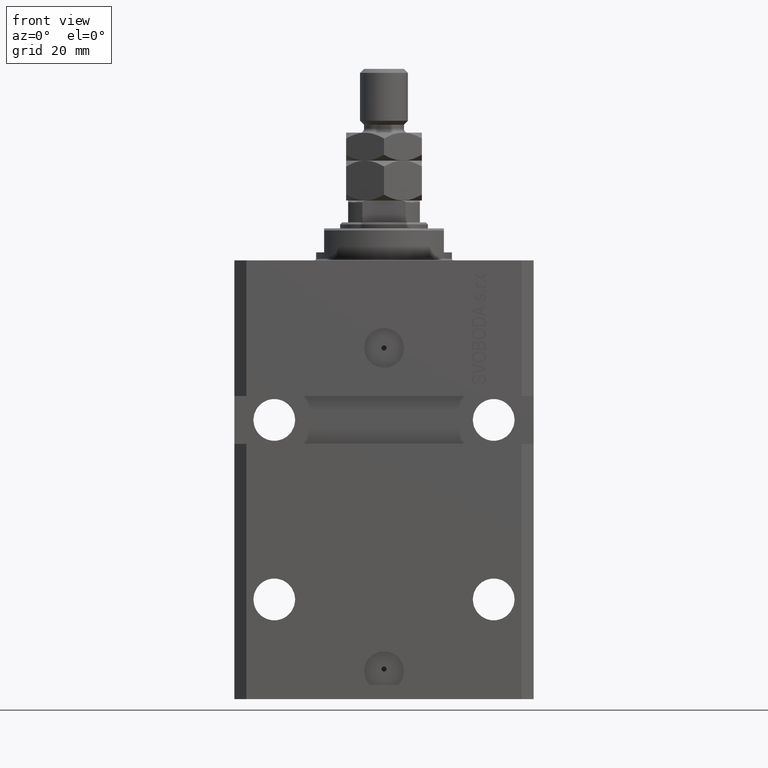
[diagram: clean part render]
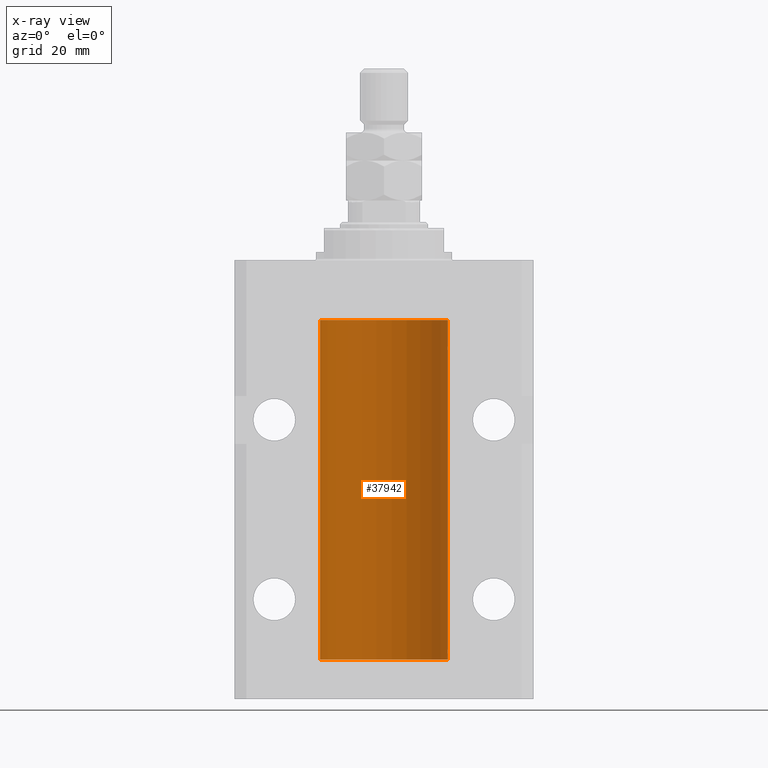
[diagram: x-ray — body ghosted, one internal face saturated and labeled with its STEP entity id]
A machine part, front view, then the same camera in x-ray: the body is ghosted and one INTERNAL B-rep face — a face not visible from any outside direction — is saturated and labeled: STEP entity #37942.
In plain terms, the highlighted cylindrical surface (partial cylindrical patch) has radius 16 mm, axis along (0, 0, 1).
Its self-contained STEP definition (entity closure, byte-faithful):
#51 = DIRECTION ( 'NONE',  ( -0.000000000000000000, -0.000000000000000000, 1.000000000000000000 ) ) ;
#489 = CARTESIAN_POINT ( 'NONE',  ( 16.00000000000000000, -1.835653844722709729E-15, -98.62500000000000000 ) ) ;
#690 = CARTESIAN_POINT ( 'NONE',  ( 15.98844460043492077, 0.6087869699336542206, -21.83657454967558564 ) ) ;
#926 = CARTESIAN_POINT ( 'NONE',  ( 15.99228275317787507, 0.5002975944204003378, -21.61642014570181303 ) ) ;
#1552 = DIRECTION ( 'NONE',  ( -0.000000000000000000, -0.000000000000000000, 1.000000000000000000 ) ) ;
#1694 = B_SPLINE_CURVE_WITH_KNOTS ( 'NONE', 3,
 ( #26391, #29898, #15883, #33633, #15416, #30139, #40656, #19840 ),
 .UNSPECIFIED., .F., .F.,
 ( 4, 2, 2, 4 ),
 ( 0.0009773326288700682433, 0.001221554802188685399, 0.001465776975507302772, 0.001954221322144537518 ),
 .UNSPECIFIED. ) ;
#1860 = VERTEX_POINT ( 'NONE', #19919 ) ;
#2806 = ORIENTED_EDGE ( 'NONE', *, *, #27897, .F. ) ;
#2835 = CARTESIAN_POINT ( 'NONE',  ( 0.000000000000000000, 0.000000000000000000, -100.0999999999999943 ) ) ;
#4076 = EDGE_CURVE ( 'NONE', #35681, #9037, #10328, .T. ) ;
#4332 = VERTEX_POINT ( 'NONE', #17916 ) ;
#5016 = VERTEX_POINT ( 'NONE', #23088 ) ;
#5038 = VECTOR ( 'NONE', #13928, 1000.000000000000000 ) ;
#5356 = ORIENTED_EDGE ( 'NONE', *, *, #7928, .T. ) ;
#5838 = DIRECTION ( 'NONE',  ( 1.000000000000000000, 0.000000000000000000, 0.000000000000000000 ) ) ;
#7324 = CARTESIAN_POINT ( 'NONE',  ( 16.00000000000000000, -7.378931128587136680E-16, -22.62500000000000000 ) ) ;
#7610 = CARTESIAN_POINT ( 'NONE',  ( -16.00000000000000000, 1.959434878635765131E-15, -100.0999999999999943 ) ) ;
#7928 = EDGE_CURVE ( 'NONE', #9037, #11939, #24367, .T. ) ;
#8016 = CARTESIAN_POINT ( 'NONE',  ( 16.00000000000000000, 0.000000000000000000, -15.00000000000000000 ) ) ;
#8124 = CYLINDRICAL_SURFACE ( 'NONE', #41912, 16.00000000000000000 ) ;
#8211 = ORIENTED_EDGE ( 'NONE', *, *, #4076, .T. ) ;
#8327 = CARTESIAN_POINT ( 'NONE',  ( -16.00000000000000000, 1.959434878635765131E-15, -100.0999999999999943 ) ) ;
#9037 = VERTEX_POINT ( 'NONE', #23539 ) ;
#9052 = CARTESIAN_POINT ( 'NONE',  ( 16.00000000000000000, -7.378931128587136680E-16, -22.62500000000000000 ) ) ;
#9068 = EDGE_CURVE ( 'NONE', #1860, #36696, #44356, .T. ) ;
#9344 = CARTESIAN_POINT ( 'NONE',  ( 0.000000000000000000, 0.000000000000000000, -15.00000000000000000 ) ) ;
#10328 = B_SPLINE_CURVE_WITH_KNOTS ( 'NONE', 3,
 ( #28964, #18889, #690, #43687, #926, #11874, #12114, #32472 ),
 .UNSPECIFIED., .F., .F.,
 ( 4, 2, 2, 4 ),
 ( 0.0009773326288699671956, 0.001221554802188560499, 0.001465776975507153803, 0.001954221322144333254 ),
 .UNSPECIFIED. ) ;
#10422 = LINE ( 'NONE', #24455, #5038 ) ;
#11874 = CARTESIAN_POINT ( 'NONE',  ( 15.99711856062700122, 0.3252985083513916242, -21.44140297987714661 ) ) ;
#11939 = VERTEX_POINT ( 'NONE', #8016 ) ;
#12114 = CARTESIAN_POINT ( 'NONE',  ( 15.99999999999999289, 0.1631343969470014366, -21.37500000000020606 ) ) ;
#12316 = CARTESIAN_POINT ( 'NONE',  ( 16.00000000000000000, 0.000000000000000000, -100.0999999999999943 ) ) ;
#12691 = ORIENTED_EDGE ( 'NONE', *, *, #33436, .T. ) ;
#13597 = CARTESIAN_POINT ( 'NONE',  ( 16.00000000000000000, -1.835653844722709729E-15, -98.62500000000000000 ) ) ;
#13928 = DIRECTION ( 'NONE',  ( -0.000000000000000000, -0.000000000000000000, 1.000000000000000000 ) ) ;
#14277 = CARTESIAN_POINT ( 'NONE',  ( 16.00000000000001066, 0.08261762387943044628, -98.62500000000001421 ) ) ;
#14617 = B_SPLINE_CURVE_WITH_KNOTS ( 'NONE', 3,
 ( #489, #14277, #42570, #43250, #21293, #32267, #18450, #39060 ),
 .UNSPECIFIED., .F., .F.,
 ( 4, 2, 2, 4 ),
 ( 1.783888443149829469E-18, 0.0002443331572175257886, 0.0004886663144350497342, 0.0009773326288700682433 ),
 .UNSPECIFIED. ) ;
#14699 = CARTESIAN_POINT ( 'NONE',  ( 15.98778830858070954, 0.6250000000080517815, -97.99999999999916156 ) ) ;
#15285 = ORIENTED_EDGE ( 'NONE', *, *, #35964, .T. ) ;
#15416 = CARTESIAN_POINT ( 'NONE',  ( 15.99228275317786441, 0.5002975944204781644, -97.61642014570176684 ) ) ;
#15637 = ORIENTED_EDGE ( 'NONE', *, *, #17285, .F. ) ;
#15826 = DIRECTION ( 'NONE',  ( 1.000000000000000000, 0.000000000000000000, 0.000000000000000000 ) ) ;
#15837 = CARTESIAN_POINT ( 'NONE',  ( 15.99707608081895494, 0.3151028052309814975, -22.54594170697728117 ) ) ;
#15883 = CARTESIAN_POINT ( 'NONE',  ( 15.98844460043491367, 0.6087869699337551399, -97.83657454967556077 ) ) ;
#17285 = EDGE_CURVE ( 'NONE', #1860, #37034, #22510, .T. ) ;
#17502 = ORIENTED_EDGE ( 'NONE', *, *, #34991, .T. ) ;
#17916 = CARTESIAN_POINT ( 'NONE',  ( 16.00000000000013145, 3.665532692826917502E-13, -97.37499999999657518 ) ) ;
#18402 = CARTESIAN_POINT ( 'NONE',  ( 0.000000000000000000, 0.000000000000000000, -100.0999999999999943 ) ) ;
#18450 = CARTESIAN_POINT ( 'NONE',  ( 15.98778830858101685, 0.6250000000002223777, -98.16311639173024162 ) ) ;
#18627 = FACE_OUTER_BOUND ( 'NONE', #39721, .T. ) ;
#18889 = CARTESIAN_POINT ( 'NONE',  ( 15.98778830858104172, 0.6249999999996183053, -21.91847885046212951 ) ) ;
#19792 = CARTESIAN_POINT ( 'NONE',  ( 16.00000000000000000, 0.08261762387942135633, -22.62499999999996803 ) ) ;
#19840 = CARTESIAN_POINT ( 'NONE',  ( 16.00000000000013145, 3.665532692826917502E-13, -97.37499999999657518 ) ) ;
#19868 = DIRECTION ( 'NONE',  ( 0.000000000000000000, 0.000000000000000000, 1.000000000000000000 ) ) ;
#19919 = CARTESIAN_POINT ( 'NONE',  ( 16.00000000000000000, 0.000000000000000000, -100.0999999999999943 ) ) ;
#20293 = AXIS2_PLACEMENT_3D ( 'NONE', #2835, #19868, #44665 ) ;
#20846 = CARTESIAN_POINT ( 'NONE',  ( 16.00000000000000000, 0.000000000000000000, -100.0999999999999943 ) ) ;
#21293 = CARTESIAN_POINT ( 'NONE',  ( 15.99548458234361448, 0.3844468804816183471, -98.49947786696355934 ) ) ;
#22322 = VECTOR ( 'NONE', #51, 1000.000000000000000 ) ;
#22510 = CIRCLE ( 'NONE', #20293, 16.00000000000000000 ) ;
#22599 = DIRECTION ( 'NONE',  ( -0.000000000000000000, -0.000000000000000000, 1.000000000000000000 ) ) ;
#23088 = CARTESIAN_POINT ( 'NONE',  ( -16.00000000000000000, 1.959434878635765131E-15, -15.00000000000000000 ) ) ;
#23539 = CARTESIAN_POINT ( 'NONE',  ( 16.00000000000013145, 3.665532680419208314E-13, -21.37499999999658229 ) ) ;
#23593 = DIRECTION ( 'NONE',  ( 0.000000000000000000, 0.000000000000000000, 1.000000000000000000 ) ) ;
#24367 = LINE ( 'NONE', #20846, #22322 ) ;
#24455 = CARTESIAN_POINT ( 'NONE',  ( 16.00000000000000000, 0.000000000000000000, -100.0999999999999943 ) ) ;
#24986 = ORIENTED_EDGE ( 'NONE', *, *, #38734, .T. ) ;
#26077 = LINE ( 'NONE', #8327, #38513 ) ;
#26391 = CARTESIAN_POINT ( 'NONE',  ( 15.98778830858070954, 0.6250000000080517815, -97.99999999999916156 ) ) ;
#26566 = DIRECTION ( 'NONE',  ( -0.000000000000000000, -0.000000000000000000, 1.000000000000000000 ) ) ;
#26842 = ORIENTED_EDGE ( 'NONE', *, *, #9068, .T. ) ;
#27897 = EDGE_CURVE ( 'NONE', #37034, #5016, #26077, .T. ) ;
#28964 = CARTESIAN_POINT ( 'NONE',  ( 15.98778830858070954, 0.6250000000079481977, -21.99999999999914735 ) ) ;
#29898 = CARTESIAN_POINT ( 'NONE',  ( 15.98778830858103817, 0.6249999999997223332, -97.91847885046210820 ) ) ;
#30139 = CARTESIAN_POINT ( 'NONE',  ( 15.99711856062700477, 0.3252985083514284281, -97.44140297987712529 ) ) ;
#30552 = CARTESIAN_POINT ( 'NONE',  ( 15.99548458234361803, 0.3844468804815583396, -22.49947786696350960 ) ) ;
#31085 = VERTEX_POINT ( 'NONE', #14699 ) ;
#31160 = ORIENTED_EDGE ( 'NONE', *, *, #43509, .T. ) ;
#31318 = VECTOR ( 'NONE', #26566, 1000.000000000000000 ) ;
#32267 = CARTESIAN_POINT ( 'NONE',  ( 15.99070366873610283, 0.5574063959867601170, -98.32639436837558833 ) ) ;
#32472 = CARTESIAN_POINT ( 'NONE',  ( 16.00000000000013145, 3.665532680419208314E-13, -21.37499999999658229 ) ) ;
#33436 = EDGE_CURVE ( 'NONE', #4332, #35627, #10422, .T. ) ;
#33633 = CARTESIAN_POINT ( 'NONE',  ( 15.99070695999103542, 0.5461439696927204990, -97.68526802364048933 ) ) ;
#34057 = CARTESIAN_POINT ( 'NONE',  ( 15.99934183755191341, 0.1636877470526788836, -22.60872690654067796 ) ) ;
#34991 = EDGE_CURVE ( 'NONE', #36696, #31085, #14617, .T. ) ;
#35627 = VERTEX_POINT ( 'NONE', #7324 ) ;
#35681 = VERTEX_POINT ( 'NONE', #36075 ) ;
#35964 = EDGE_CURVE ( 'NONE', #31085, #4332, #1694, .T. ) ;
#36075 = CARTESIAN_POINT ( 'NONE',  ( 15.98778830858070954, 0.6250000000079481977, -21.99999999999914735 ) ) ;
#36187 = B_SPLINE_CURVE_WITH_KNOTS ( 'NONE', 3,
 ( #9052, #19792, #34057, #15837, #30552, #45051, #45516, #38729 ),
 .UNSPECIFIED., .F., .F.,
 ( 4, 2, 2, 4 ),
 ( 1.864948331951035013E-18, 0.0002443331572174913110, 0.0004886663144349807789, 0.0009773326288699671956 ),
 .UNSPECIFIED. ) ;
#36696 = VERTEX_POINT ( 'NONE', #13597 ) ;
#37034 = VERTEX_POINT ( 'NONE', #7610 ) ;
#37310 = CIRCLE ( 'NONE', #44802, 16.00000000000000000 ) ;
#37942 = ADVANCED_FACE ( 'NONE', ( #18627 ), #8124, .F. ) ;
#38513 = VECTOR ( 'NONE', #1552, 1000.000000000000000 ) ;
#38729 = CARTESIAN_POINT ( 'NONE',  ( 15.98778830858070954, 0.6250000000079481977, -21.99999999999914735 ) ) ;
#38734 = EDGE_CURVE ( 'NONE', #11939, #5016, #37310, .T. ) ;
#39060 = CARTESIAN_POINT ( 'NONE',  ( 15.98778830858070954, 0.6250000000080517815, -97.99999999999916156 ) ) ;
#39721 = EDGE_LOOP ( 'NONE', ( #2806, #15637, #26842, #17502, #15285, #12691, #31160, #8211, #5356, #24986 ) ) ;
#40656 = CARTESIAN_POINT ( 'NONE',  ( 15.99999999999999645, 0.1631343969470158417, -97.37500000000021316 ) ) ;
#41912 = AXIS2_PLACEMENT_3D ( 'NONE', #18402, #22599, #15826 ) ;
#42570 = CARTESIAN_POINT ( 'NONE',  ( 15.99934183755190986, 0.1636877470527013101, -98.60872690654072414 ) ) ;
#43250 = CARTESIAN_POINT ( 'NONE',  ( 15.99707608081895138, 0.3151028052310259620, -98.54594170697734512 ) ) ;
#43509 = EDGE_CURVE ( 'NONE', #35627, #35681, #36187, .T. ) ;
#43687 = CARTESIAN_POINT ( 'NONE',  ( 15.99070695999104252, 0.5461439696926362330, -21.68526802364053552 ) ) ;
#44356 = LINE ( 'NONE', #12316, #31318 ) ;
#44665 = DIRECTION ( 'NONE',  ( 1.000000000000000000, 0.000000000000000000, 0.000000000000000000 ) ) ;
#44802 = AXIS2_PLACEMENT_3D ( 'NONE', #9344, #23593, #5838 ) ;
#45051 = CARTESIAN_POINT ( 'NONE',  ( 15.99070366873610638, 0.5574063959866681905, -22.32639436837549596 ) ) ;
#45516 = CARTESIAN_POINT ( 'NONE',  ( 15.98778830858101152, 0.6250000000001202372, -22.16311639173018477 ) ) ;